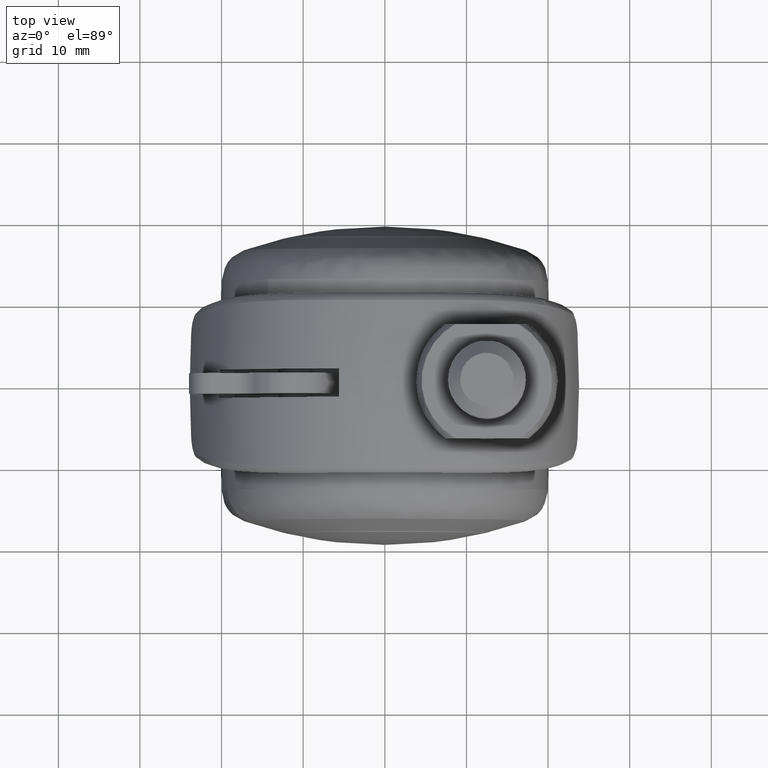
[diagram: clean part render]
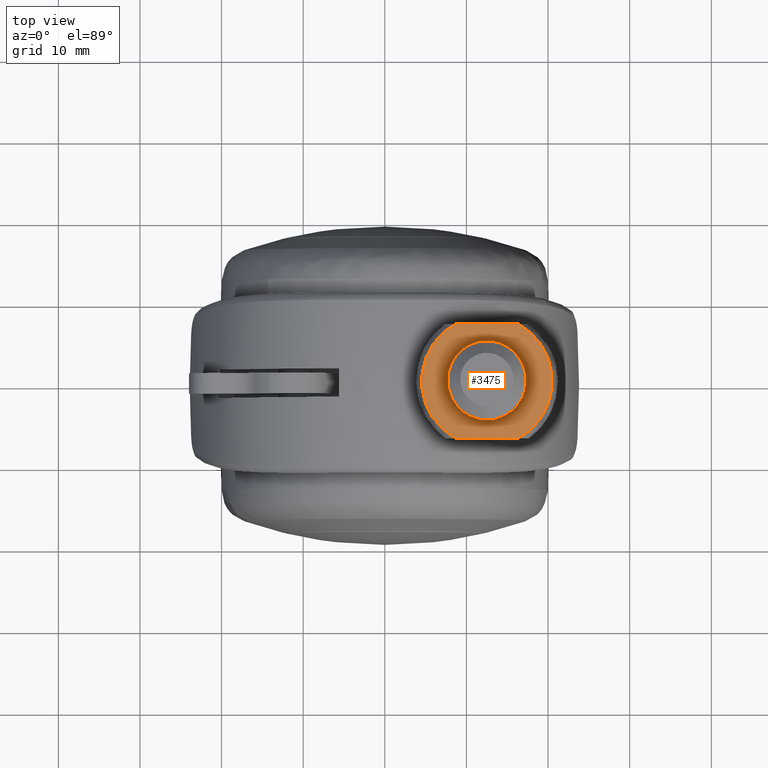
[diagram: same view with one face highlighted and labeled with its STEP entity id]
A machine part, top view. The second image highlights one B-rep face of the part: STEP entity #3475.
In plain terms, the highlighted face is a freeform B-spline surface patch.
Its self-contained STEP definition (entity closure, byte-faithful):
#2120=CARTESIAN_POINT('',(12.458439874579870,-4.762318658592162,32.999999990539102));
#2121=VERTEX_POINT('',#2120);
#2127=CARTESIAN_POINT('',(17.262499999999999,9.551930E-016,32.999999990539102));
#2128=VERTEX_POINT('',#2127);
#2129=CARTESIAN_POINT('',(12.458439874579863,-4.762318658592162,32.999999990539095));
#2130=CARTESIAN_POINT('',(12.479219541607279,-4.762500000000000,32.999999990539102));
#2131=CARTESIAN_POINT('',(12.500000000000000,-4.762499999999999,32.999999990539102));
#2132=CARTESIAN_POINT('',(17.262500000000003,-4.762499999999999,32.999999990539095));
#2133=CARTESIAN_POINT('',(17.262499999999999,9.551930E-016,32.999999990539102));
#2141=(BOUNDED_CURVE()B_SPLINE_CURVE(2,(#2129,#2130,#2131,#2132,#2133),.UNSPECIFIED.,.F.,.U.)B_SPLINE_CURVE_WITH_KNOTS((3,2,3),(0.248460105656940,0.250000000000000,0.500000000000000),.UNSPECIFIED.)CURVE()GEOMETRIC_REPRESENTATION_ITEM()RATIONAL_B_SPLINE_CURVE((0.996414028081723,0.998195901556914,1.0,0.707106781186548,1.0))REPRESENTATION_ITEM(''));
#2142=EDGE_CURVE('',#2121,#2128,#2141,.T.);
#2144=CARTESIAN_POINT('',(13.091159700149211,4.725667832055009,32.999999990539102));
#2145=VERTEX_POINT('',#2144);
#2146=CARTESIAN_POINT('',(17.262499999999999,9.551930E-016,32.999999990539102));
#2147=CARTESIAN_POINT('',(17.262499999999999,4.203851921405815,32.999999990539102));
#2148=CARTESIAN_POINT('',(13.091159700149207,4.725667832055009,32.999999990539088));
#2156=(BOUNDED_CURVE()B_SPLINE_CURVE(2,(#2146,#2147,#2148),.UNSPECIFIED.,.F.,.U.)B_SPLINE_CURVE_WITH_KNOTS((3,3),(0.500000000000000,0.728526064588184),.UNSPECIFIED.)CURVE()GEOMETRIC_REPRESENTATION_ITEM()RATIONAL_B_SPLINE_CURVE((1.0,0.732265061439984,0.954005417775005))REPRESENTATION_ITEM(''));
#2157=EDGE_CURVE('',#2128,#2145,#2156,.T.);
#2192=CARTESIAN_POINT('',(7.737500000000001,9.551930E-016,32.999999990539102));
#2193=VERTEX_POINT('',#2192);
#2194=CARTESIAN_POINT('',(13.091159700149204,4.725667832055010,32.999999990539102));
#2195=CARTESIAN_POINT('',(12.796727308678703,4.762500000000001,32.999999990539088));
#2196=CARTESIAN_POINT('',(12.500000000000000,4.762500000000001,32.999999990539102));
#2197=CARTESIAN_POINT('',(7.737500000000002,4.762500000000002,32.999999990539095));
#2198=CARTESIAN_POINT('',(7.737500000000001,9.551930E-016,32.999999990539102));
#2206=(BOUNDED_CURVE()B_SPLINE_CURVE(2,(#2194,#2195,#2196,#2197,#2198),.UNSPECIFIED.,.F.,.U.)B_SPLINE_CURVE_WITH_KNOTS((3,2,3),(0.728526064588183,0.750000000000000,1.0),.UNSPECIFIED.)CURVE()GEOMETRIC_REPRESENTATION_ITEM()RATIONAL_B_SPLINE_CURVE((0.954005417775004,0.974841719746563,1.0,0.707106781186548,1.0))REPRESENTATION_ITEM(''));
#2207=EDGE_CURVE('',#2145,#2193,#2206,.T.);
#2209=CARTESIAN_POINT('',(7.737500000000001,9.551930E-016,32.999999990539102));
#2210=CARTESIAN_POINT('',(7.737500000000001,-4.721119640242203,32.999999990539095));
#2211=CARTESIAN_POINT('',(12.458439874579863,-4.762318658592162,32.999999990539095));
#2219=(BOUNDED_CURVE()B_SPLINE_CURVE(2,(#2209,#2210,#2211),.UNSPECIFIED.,.F.,.U.)B_SPLINE_CURVE_WITH_KNOTS((3,3),(0.0,0.248460105656940),.UNSPECIFIED.)CURVE()GEOMETRIC_REPRESENTATION_ITEM()RATIONAL_B_SPLINE_CURVE((1.0,0.708910879629633,0.996414028081723))REPRESENTATION_ITEM(''));
#2220=EDGE_CURVE('',#2193,#2121,#2219,.T.);
#3136=CARTESIAN_POINT('',(8.627016367025400,7.000000000000201,33.0));
#3137=VERTEX_POINT('',#3136);
#3181=CARTESIAN_POINT('',(16.372983632974599,7.000000000000201,33.0));
#3182=VERTEX_POINT('',#3181);
#3183=CARTESIAN_POINT('',(8.627016367025400,7.000000000000201,33.0));
#3184=CARTESIAN_POINT('',(16.372983632974599,7.000000000000201,33.0));
#3185=QUASI_UNIFORM_CURVE('',1,(#3183,#3184),.UNSPECIFIED.,.F.,.U.);
#3186=EDGE_CURVE('',#3137,#3182,#3185,.T.);
#3237=CARTESIAN_POINT('',(8.627016367025400,-7.000000000000201,33.0));
#3238=VERTEX_POINT('',#3237);
#3289=CARTESIAN_POINT('',(16.372983632974599,-7.000000000000201,33.0));
#3290=VERTEX_POINT('',#3289);
#3334=CARTESIAN_POINT('',(8.627016367025400,-7.000000000000201,33.0));
#3335=CARTESIAN_POINT('',(16.372983632974599,-7.000000000000201,33.0));
#3336=QUASI_UNIFORM_CURVE('',1,(#3334,#3335),.UNSPECIFIED.,.F.,.U.);
#3337=EDGE_CURVE('',#3238,#3290,#3336,.T.);
#3423=CARTESIAN_POINT('',(8.627016367025400,-7.000000000000201,33.0));
#3424=CARTESIAN_POINT('',(4.499999848296092,-4.716590381847536,32.999999981078247));
#3425=CARTESIAN_POINT('',(4.499999848296091,0.0,32.999999981078247));
#3426=CARTESIAN_POINT('',(4.499999848296092,4.716590381847534,32.999999981078247));
#3427=CARTESIAN_POINT('',(8.627016367025400,7.000000000000201,33.0));
#3435=(BOUNDED_CURVE()B_SPLINE_CURVE(2,(#3423,#3424,#3425,#3426,#3427),.UNSPECIFIED.,.F.,.U.)B_SPLINE_CURVE_WITH_KNOTS((3,2,3),(0.0,0.500000000000000,1.0),.UNSPECIFIED.)CURVE()GEOMETRIC_REPRESENTATION_ITEM()RATIONAL_B_SPLINE_CURVE((1.0,0.861429900142905,1.0,0.861429900142905,1.0))REPRESENTATION_ITEM(''));
#3436=EDGE_CURVE('',#3238,#3137,#3435,.T.);
#3444=CARTESIAN_POINT('',(21.299199985651448,-7.699299972865505,32.999999990539102));
#3445=CARTESIAN_POINT('',(3.700799442143953,-7.699299972865505,32.999999990539102));
#3446=CARTESIAN_POINT('',(21.299199985651448,7.699300348374766,32.999999990539102));
#3447=CARTESIAN_POINT('',(3.700799442143953,7.699300348374766,32.999999990539102));
#3448=B_SPLINE_SURFACE_WITH_KNOTS('',1,1,((#3444,#3446),(#3445,#3447)),.UNSPECIFIED.,.F.,.F.,.U.,(2,2),(2,2),(0.0,17.598400543507498),(0.0,15.398600321240270),.UNSPECIFIED.);
#3449=CARTESIAN_POINT('',(16.372983632974599,7.000000000000201,33.0));
#3450=CARTESIAN_POINT('',(20.500000151703915,4.716590381847536,32.999999981078247));
#3451=CARTESIAN_POINT('',(20.500000151703912,0.0,32.999999981078247));
#3452=CARTESIAN_POINT('',(20.500000151703915,-4.716590381847534,32.999999981078247));
#3453=CARTESIAN_POINT('',(16.372983632974599,-7.000000000000201,33.0));
#3461=(BOUNDED_CURVE()B_SPLINE_CURVE(2,(#3449,#3450,#3451,#3452,#3453),.UNSPECIFIED.,.F.,.U.)B_SPLINE_CURVE_WITH_KNOTS((3,2,3),(0.0,0.500000000000000,1.0),.UNSPECIFIED.)CURVE()GEOMETRIC_REPRESENTATION_ITEM()RATIONAL_B_SPLINE_CURVE((1.0,0.861429900142905,1.0,0.861429900142905,1.0))REPRESENTATION_ITEM(''));
#3462=EDGE_CURVE('',#3182,#3290,#3461,.T.);
#3463=ORIENTED_EDGE('',*,*,#3462,.F.);
#3464=ORIENTED_EDGE('',*,*,#3186,.F.);
#3465=ORIENTED_EDGE('',*,*,#3436,.F.);
#3466=ORIENTED_EDGE('',*,*,#3337,.T.);
#3467=EDGE_LOOP('',(#3463,#3464,#3465,#3466));
#3468=FACE_OUTER_BOUND('',#3467,.T.);
#3469=ORIENTED_EDGE('',*,*,#2220,.F.);
#3470=ORIENTED_EDGE('',*,*,#2207,.F.);
#3471=ORIENTED_EDGE('',*,*,#2157,.F.);
#3472=ORIENTED_EDGE('',*,*,#2142,.F.);
#3473=EDGE_LOOP('',(#3469,#3470,#3471,#3472));
#3474=FACE_BOUND('',#3473,.T.);
#3475=ADVANCED_FACE('',(#3468,#3474),#3448,.F.);